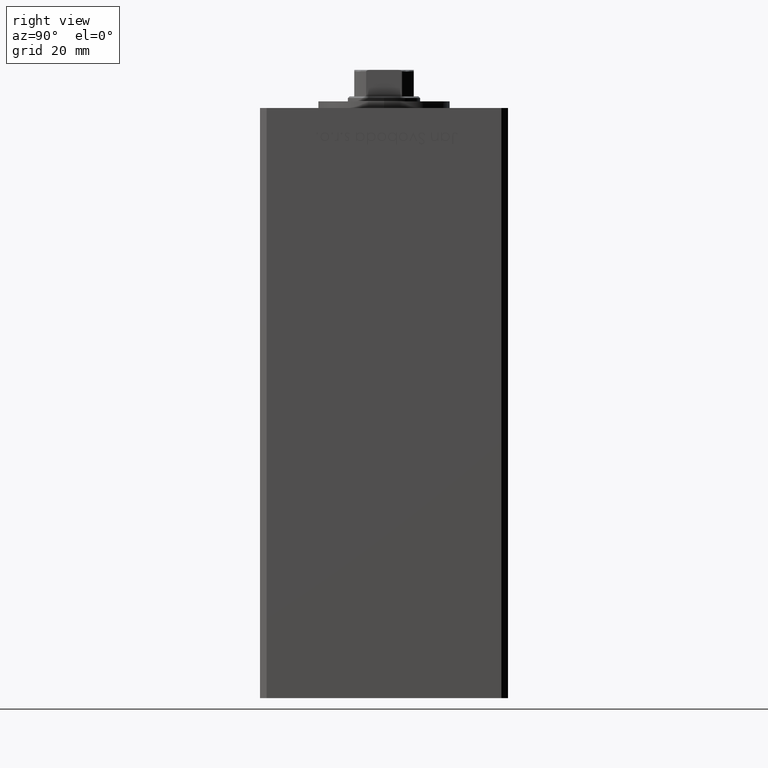
[diagram: clean part render]
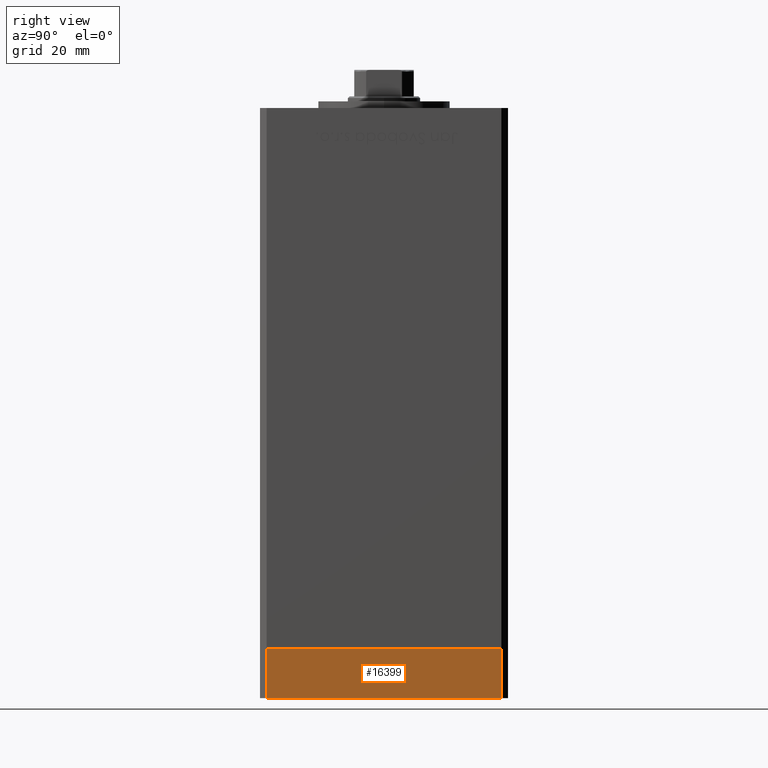
[diagram: same view with one face highlighted and labeled with its STEP entity id]
A machine part, right view. The second image highlights one B-rep face of the part: STEP entity #16399.
In plain terms, the highlighted planar face has unit normal (1, -0, 0).
Its self-contained STEP definition (entity closure, byte-faithful):
#2168 = FACE_OUTER_BOUND ( 'NONE', #9966, .T. ) ;
#5705 = CARTESIAN_POINT ( 'NONE',  ( -42.50000000000000000, -35.50000000000000711, -15.00000000000000000 ) ) ;
#5845 = DIRECTION ( 'NONE',  ( -1.000000000000000000, -9.773090005503140331E-17, 0.000000000000000000 ) ) ;
#8956 = DIRECTION ( 'NONE',  ( 0.000000000000000000, 0.000000000000000000, 1.000000000000000000 ) ) ;
#9966 = EDGE_LOOP ( 'NONE', ( #31614, #35229, #31999, #38945 ) ) ;
#11140 = CARTESIAN_POINT ( 'NONE',  ( -42.50000000000000711, 35.49999999999997158, 0.000000000000000000 ) ) ;
#14267 = CARTESIAN_POINT ( 'NONE',  ( -42.50000000000000711, 35.49999999999997158, -15.00000000000000000 ) ) ;
#15571 = EDGE_CURVE ( 'NONE', #46528, #49170, #34587, .T. ) ;
#16147 = DIRECTION ( 'NONE',  ( 9.773090005503140331E-17, -1.000000000000000000, 0.000000000000000000 ) ) ;
#16399 = ADVANCED_FACE ( 'NONE', ( #2168 ), #34339, .T. ) ;
#17543 = VERTEX_POINT ( 'NONE', #33799 ) ;
#17778 = VECTOR ( 'NONE', #42770, 1000.000000000000000 ) ;
#19583 = LINE ( 'NONE', #11140, #21103 ) ;
#21103 = VECTOR ( 'NONE', #16147, 1000.000000000000000 ) ;
#28662 = CARTESIAN_POINT ( 'NONE',  ( -42.50000000000000711, 35.49999999999997158, -15.00000000000000000 ) ) ;
#31614 = ORIENTED_EDGE ( 'NONE', *, *, #32996, .F. ) ;
#31999 = ORIENTED_EDGE ( 'NONE', *, *, #48161, .T. ) ;
#32637 = LINE ( 'NONE', #28662, #50075 ) ;
#32996 = EDGE_CURVE ( 'NONE', #49170, #17543, #19583, .T. ) ;
#33496 = CARTESIAN_POINT ( 'NONE',  ( -42.50000000000000000, -35.50000000000000711, -15.00000000000000000 ) ) ;
#33799 = CARTESIAN_POINT ( 'NONE',  ( -42.50000000000000000, -35.50000000000000711, 0.000000000000000000 ) ) ;
#34339 = PLANE ( 'NONE',  #49842 ) ;
#34587 = LINE ( 'NONE', #14267, #17778 ) ;
#35229 = ORIENTED_EDGE ( 'NONE', *, *, #15571, .F. ) ;
#38945 = ORIENTED_EDGE ( 'NONE', *, *, #51688, .T. ) ;
#41990 = CARTESIAN_POINT ( 'NONE',  ( -42.50000000000000711, 35.49999999999997158, -15.00000000000000000 ) ) ;
#42770 = DIRECTION ( 'NONE',  ( 0.000000000000000000, 0.000000000000000000, 1.000000000000000000 ) ) ;
#44622 = VERTEX_POINT ( 'NONE', #5705 ) ;
#44770 = DIRECTION ( 'NONE',  ( 9.773090005503140331E-17, -1.000000000000000000, 0.000000000000000000 ) ) ;
#44971 = CARTESIAN_POINT ( 'NONE',  ( -42.50000000000000711, 35.49999999999997158, 0.000000000000000000 ) ) ;
#46528 = VERTEX_POINT ( 'NONE', #51690 ) ;
#46996 = DIRECTION ( 'NONE',  ( 9.773090005503140331E-17, -1.000000000000000000, 0.000000000000000000 ) ) ;
#48161 = EDGE_CURVE ( 'NONE', #46528, #44622, #32637, .T. ) ;
#49170 = VERTEX_POINT ( 'NONE', #44971 ) ;
#49587 = LINE ( 'NONE', #33496, #51830 ) ;
#49842 = AXIS2_PLACEMENT_3D ( 'NONE', #41990, #5845, #46996 ) ;
#50075 = VECTOR ( 'NONE', #44770, 1000.000000000000000 ) ;
#51688 = EDGE_CURVE ( 'NONE', #44622, #17543, #49587, .T. ) ;
#51690 = CARTESIAN_POINT ( 'NONE',  ( -42.50000000000000711, 35.49999999999997158, -15.00000000000000000 ) ) ;
#51830 = VECTOR ( 'NONE', #8956, 1000.000000000000000 ) ;